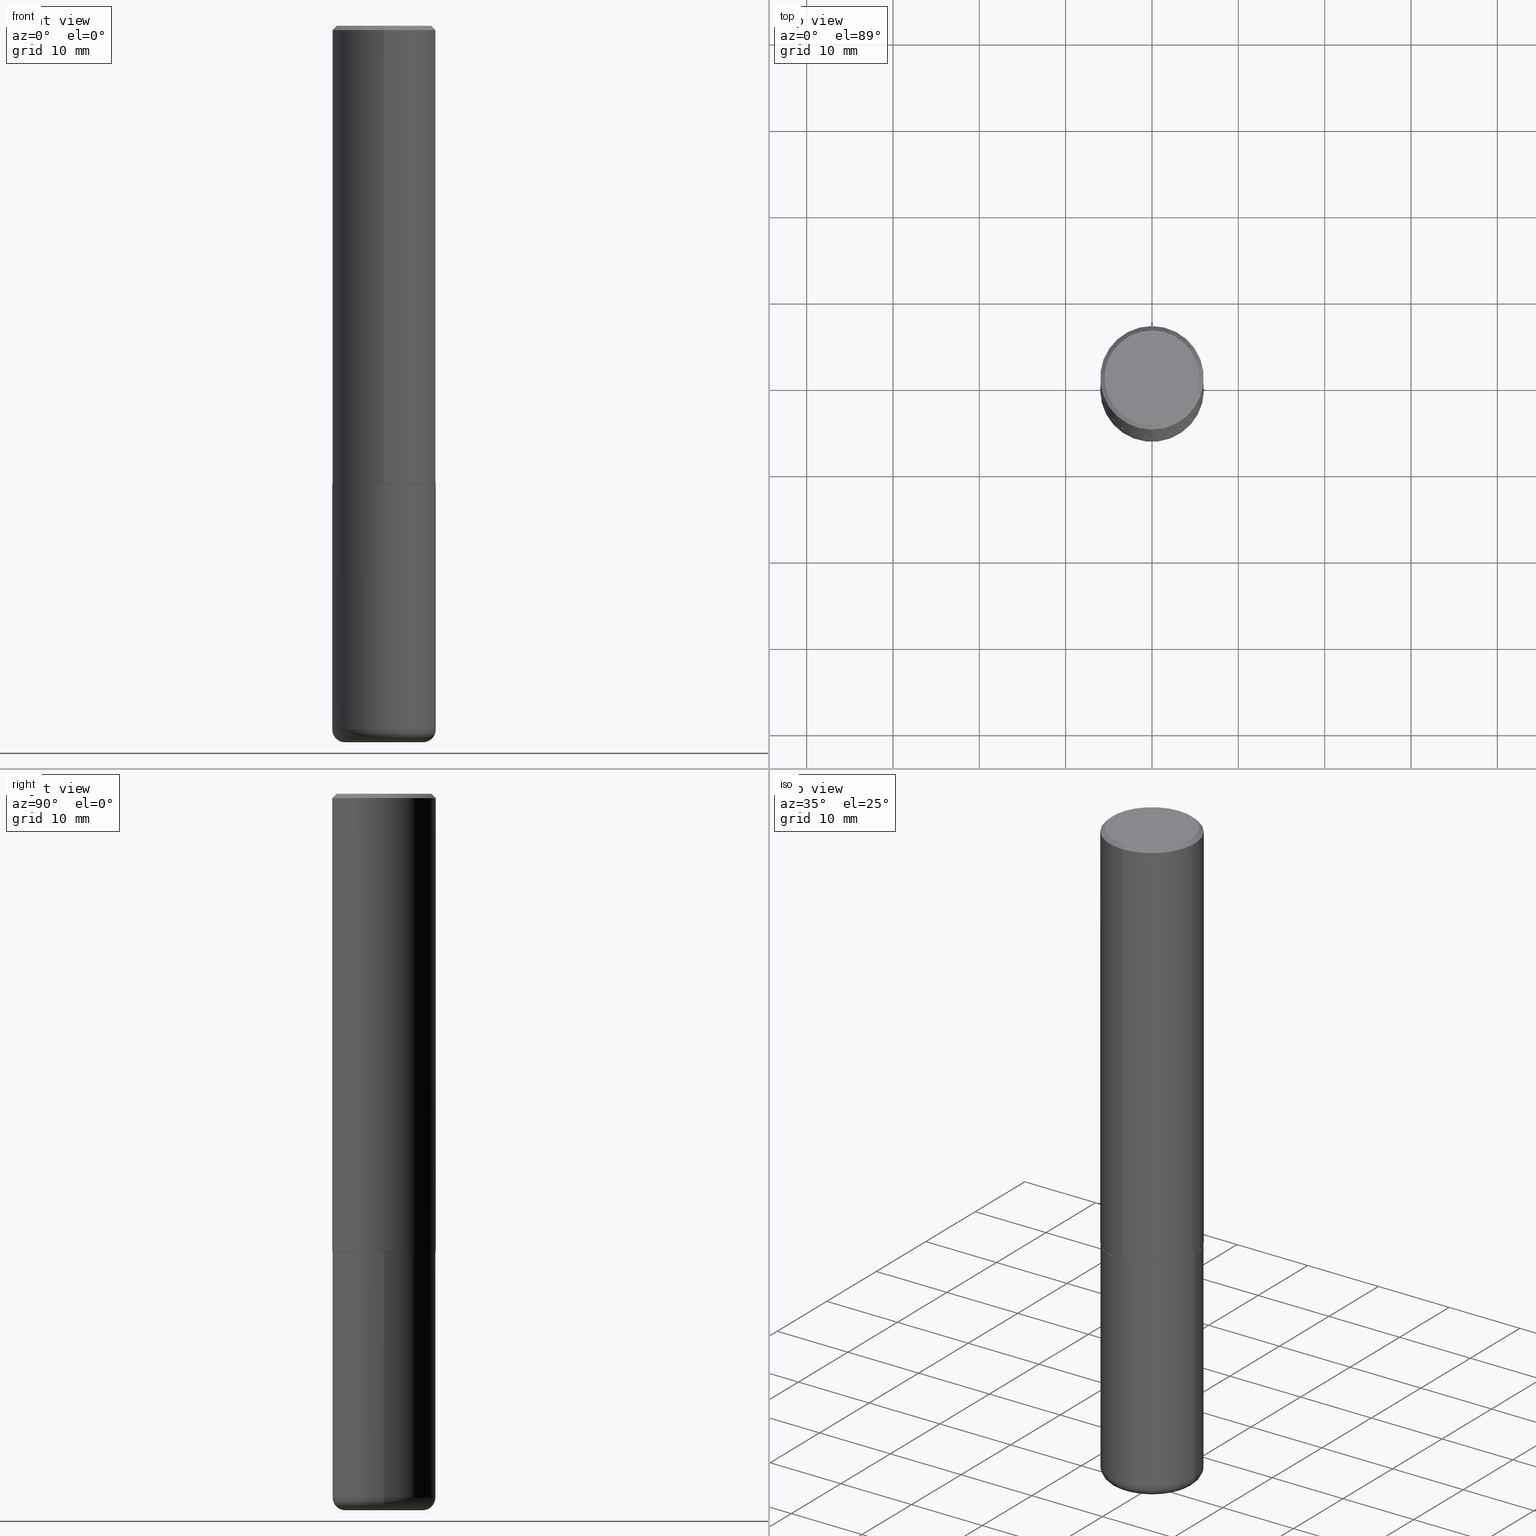
[diagram: canonical four-view strip — front | top / right | iso, engineering-drawing reading convention]
A machine part, canonical four-view strip (front | top / right | iso — engineering-drawing reading convention). The complete STEP part file that produces these views, byte-faithful:
ISO-10303-21;
HEADER;
FILE_DESCRIPTION (( 'STEP AP203' ),
    '1' );
FILE_NAME ('43484.STEP',
    '2024-03-04T05:36:12',
    ( '' ),
    ( '' ),
    'SwSTEP 2.0',
    'SolidWorks 2023',
    '' );
FILE_SCHEMA (( 'CONFIG_CONTROL_DESIGN' ));
ENDSEC;

DATA;
#1 = CARTESIAN_POINT ( 'NONE',  ( 0.000000000000000000, 0.000000000000000000, 0.000000000000000000 ) ) ;
#2 = FACE_OUTER_BOUND ( 'NONE', #232, .T. ) ;
#3 = DIRECTION ( 'NONE',  ( 2.445164865864999768E-29, -3.491916598680790247E-15, -1.000000000000000000 ) ) ;
#4 = DIRECTION ( 'NONE',  ( -2.445468806185136597E-29, 3.491481338843145583E-15, 1.000000000000000000 ) ) ;
#5 = EDGE_CURVE ( 'NONE', #24, #235, #342, .T. ) ;
#6 = DIRECTION ( 'NONE',  ( -6.982962677686265922E-15, -1.000000000000000000, 3.491916598680790247E-15 ) ) ;
#7 = TOROIDAL_SURFACE ( 'NONE', #220, 0.1771000000000000074, 0.05909999999999997200 ) ;
#8 = CARTESIAN_POINT ( 'NONE',  ( 7.991058417971171713E-29, -1.140911357093774644E-14, -3.267700000000000049 ) ) ;
#9 = LOCAL_TIME ( 0, 36, 12.00000000000000000, #96 ) ;
#10 = DATE_AND_TIME ( #408, #9 ) ;
#11 = ORIENTED_EDGE ( 'NONE', *, *, #269, .T. ) ;
#12 = CYLINDRICAL_SURFACE ( 'NONE', #228, 0.2361999999999999933 ) ;
#13 = EDGE_CURVE ( 'NONE', #330, #167, #407, .T. ) ;
#14 =( CONVERSION_BASED_UNIT ( 'INCH', #292 ) LENGTH_UNIT ( ) NAMED_UNIT ( #333 ) );
#15 = AXIS2_PLACEMENT_3D ( 'NONE', #223, #48, #217 ) ;
#16 = ORIENTED_EDGE ( 'NONE', *, *, #197, .F. ) ;
#17 = ADVANCED_FACE ( 'NONE', ( #350 ), #7, .T. ) ;
#18 = ORIENTED_EDGE ( 'NONE', *, *, #13, .F. ) ;
#19 = CIRCLE ( 'NONE', #142, 0.2362000000000002431 ) ;
#20 = AXIS2_PLACEMENT_3D ( 'NONE', #274, #311, #30 ) ;
#21 = EDGE_CURVE ( 'NONE', #330, #337, #127, .T. ) ;
#22 = EDGE_LOOP ( 'NONE', ( #268, #18, #413, #290 ) ) ;
#23 = EDGE_CURVE ( 'NONE', #235, #24, #98, .T. ) ;
#24 = VERTEX_POINT ( 'NONE', #151 ) ;
#25 = ORIENTED_EDGE ( 'NONE', *, *, #197, .T. ) ;
#26 = DIRECTION ( 'NONE',  ( -2.445468806185136597E-29, 3.491481338843145583E-15, 1.000000000000000000 ) ) ;
#27 = ORIENTED_EDGE ( 'NONE', *, *, #21, .F. ) ;
#28 = AXIS2_PLACEMENT_3D ( 'NONE', #392, #329, #283 ) ;
#29 = CYLINDRICAL_SURFACE ( 'NONE', #20, 0.2362000000000001321 ) ;
#30 = DIRECTION ( 'NONE',  ( -6.982962677686265922E-15, -1.000000000000000000, 3.491916598680790641E-15 ) ) ;
#31 = PERSON_AND_ORGANIZATION ( #91, #132 ) ;
#32 = CARTESIAN_POINT ( 'NONE',  ( -1.066731455221863583E-46, 1.523389006125936301E-32, 4.362615666999196179E-18 ) ) ;
#33 = PERSON_AND_ORGANIZATION_ROLE ( 'classification_officer' ) ;
#34 = APPROVAL_ROLE ( '' ) ;
#35 = DIRECTION ( 'NONE',  ( -2.445164865864999768E-29, 3.491916598680790247E-15, 1.000000000000000000 ) ) ;
#36 = DATE_AND_TIME ( #218, #364 ) ;
#37 = EDGE_CURVE ( 'NONE', #257, #170, #317, .T. ) ;
#38 = DIRECTION ( 'NONE',  ( 0.000000000000000000, 0.000000000000000000, 1.000000000000000000 ) ) ;
#39 = PERSON_AND_ORGANIZATION_ROLE ( 'design_supplier' ) ;
#40 = DIRECTION ( 'NONE',  ( 2.438088387897960049E-29, -3.491481338843145188E-15, -1.000000000000000000 ) ) ;
#41 = DIRECTION ( 'NONE',  ( -2.445468806185136597E-29, 3.491481338843145583E-15, 1.000000000000000000 ) ) ;
#42 = DIRECTION ( 'NONE',  ( 1.000000000000000000, -6.982962677686265133E-15, 0.000000000000000000 ) ) ;
#43 = EDGE_CURVE ( 'NONE', #235, #402, #248, .T. ) ;
#44 = PERSON_AND_ORGANIZATION ( #91, #132 ) ;
#45 = ORIENTED_EDGE ( 'NONE', *, *, #155, .T. ) ;
#46 = CARTESIAN_POINT ( 'NONE',  ( -1.551844647095919747E-15, -0.2161999999999999755, 7.593149843017860131E-16 ) ) ;
#47 = PRODUCT_DEFINITION ( 'UNKNOWN', '', #77, #349 ) ;
#48 = DIRECTION ( 'NONE',  ( -6.982962677686266711E-15, -1.000000000000000000, 3.491481338843145583E-15 ) ) ;
#49 =( NAMED_UNIT ( * ) SI_UNIT ( $, .STERADIAN. ) SOLID_ANGLE_UNIT ( ) );
#50 = VECTOR ( 'NONE', #320, 39.37007874015748854 ) ;
#51 = COORDINATED_UNIVERSAL_TIME_OFFSET ( 5, 0, .BEHIND. ) ;
#52 = ORIENTED_EDGE ( 'NONE', *, *, #5, .T. ) ;
#53 = EDGE_LOOP ( 'NONE', ( #59, #136, #138, #334 ) ) ;
#54 = APPROVAL ( #348, 'UNSPECIFIED' ) ;
#55 = AXIS2_PLACEMENT_3D ( 'NONE', #244, #35, #318 ) ;
#56 = ORIENTED_EDGE ( 'NONE', *, *, #370, .F. ) ;
#57 = ORIENTED_EDGE ( 'NONE', *, *, #37, .F. ) ;
#58 = DIRECTION ( 'NONE',  ( 2.438088387897960049E-29, -3.491481338843145188E-15, -1.000000000000000000 ) ) ;
#59 = ORIENTED_EDGE ( 'NONE', *, *, #43, .F. ) ;
#60 = DIRECTION ( 'NONE',  ( 1.000000000000000000, -6.982962677686265133E-15, 0.000000000000000000 ) ) ;
#61 = AXIS2_PLACEMENT_3D ( 'NONE', #396, #185, #289 ) ;
#62 = DIRECTION ( 'NONE',  ( 2.445164865864999768E-29, -3.491916598680790247E-15, -1.000000000000000000 ) ) ;
#63 = CC_DESIGN_SECURITY_CLASSIFICATION ( #265, ( #77 ) ) ;
#64 = CARTESIAN_POINT ( 'NONE',  ( 7.846531211525630380E-29, -1.120276702381211762E-14, -3.208600000000000119 ) ) ;
#65 = DIRECTION ( 'NONE',  ( -2.445164865864999768E-29, 3.491916598680790247E-15, 1.000000000000000000 ) ) ;
#66 = FACE_OUTER_BOUND ( 'NONE', #267, .T. ) ;
#67 = CARTESIAN_POINT ( 'NONE',  ( 0.1771000000000000074, -1.264579626115598374E-14, -3.267700000000000049 ) ) ;
#68 = DIRECTION ( 'NONE',  ( -2.445164865864999768E-29, 3.491916598680790247E-15, 1.000000000000000000 ) ) ;
#69 = AXIS2_PLACEMENT_3D ( 'NONE', #225, #40, #187 ) ;
#70 =( LENGTH_UNIT ( ) NAMED_UNIT ( * ) SI_UNIT ( $, .METRE. ) );
#71 = PERSON_AND_ORGANIZATION ( #91, #132 ) ;
#72 = CALENDAR_DATE ( 2024, 4, 3 ) ;
#73 = AXIS2_PLACEMENT_3D ( 'NONE', #1, #122, #95 ) ;
#74 = AXIS2_PLACEMENT_3D ( 'NONE', #90, #278, #60 ) ;
#75 = DIRECTION ( 'NONE',  ( -6.982962677686265922E-15, -1.000000000000000000, 3.491916598680790247E-15 ) ) ;
#76 = ADVANCED_FACE ( 'NONE', ( #391 ), #206, .T. ) ;
#77 = PRODUCT_DEFINITION_FORMATION_WITH_SPECIFIED_SOURCE ( 'ANY', '', #137, .NOT_KNOWN. ) ;
#78 = ORIENTED_EDGE ( 'NONE', *, *, #37, .T. ) ;
#79 = ORIENTED_EDGE ( 'NONE', *, *, #370, .T. ) ;
#80 = CONICAL_SURFACE ( 'NONE', #100, 0.2361999999999999933, 0.7853981633974476129 ) ;
#81 = ORIENTED_EDGE ( 'NONE', *, *, #155, .F. ) ;
#82 = DIRECTION ( 'NONE',  ( -2.445164865864999768E-29, 3.491916598680790247E-15, 1.000000000000000000 ) ) ;
#83 = ADVANCED_FACE ( 'NONE', ( #89 ), #134, .T. ) ;
#84 = ORIENTED_EDGE ( 'NONE', *, *, #371, .F. ) ;
#85 = DIRECTION ( 'NONE',  ( -6.982962677686265922E-15, -1.000000000000000000, 3.469747663417773452E-15 ) ) ;
#86 = APPROVAL ( #115, 'UNSPECIFIED' ) ;
#87 = EDGE_LOOP ( 'NONE', ( #45, #196, #198, #378 ) ) ;
#88 = LINE ( 'NONE', #351, #363 ) ;
#89 = FACE_OUTER_BOUND ( 'NONE', #241, .T. ) ;
#90 = CARTESIAN_POINT ( 'NONE',  ( 5.102715210985906276E-29, -7.285324961630107416E-15, -2.086600000000000232 ) ) ;
#91 = PERSON ( 'UNSPECIFIED', 'UNSPECIFIED', 'UNSPECIFIED', ('UNSPECIFIED'), ('UNSPECIFIED'), ('UNSPECIFIED') ) ;
#92 = DIRECTION ( 'NONE',  ( -2.445164865864999768E-29, 3.491916598680790247E-15, 1.000000000000000000 ) ) ;
#93 = CARTESIAN_POINT ( 'NONE',  ( 1.649375784469496525E-15, 0.2361999999999999378, -0.02000000000000087472 ) ) ;
#94 = EDGE_CURVE ( 'NONE', #167, #170, #148, .T. ) ;
#95 = DIRECTION ( 'NONE',  ( 1.000000000000000000, -6.982962677686266711E-15, 4.876176775795936353E-29 ) ) ;
#96 = COORDINATED_UNIVERSAL_TIME_OFFSET ( 5, 0, .BEHIND. ) ;
#97 = DIRECTION ( 'NONE',  ( 1.000000000000000000, -6.982962677686266711E-15, 4.876176775795936353E-29 ) ) ;
#98 = CIRCLE ( 'NONE', #175, 0.2362000000000000210 ) ;
#99 = CARTESIAN_POINT ( 'NONE',  ( 5.102081009113908658E-29, -7.286233174807336788E-15, -2.086600000000000232 ) ) ;
#100 = AXIS2_PLACEMENT_3D ( 'NONE', #152, #62, #144 ) ;
#101 = FACE_OUTER_BOUND ( 'NONE', #332, .T. ) ;
#102 = APPLICATION_CONTEXT ( 'configuration controlled 3d designs of mechanical parts and assemblies' ) ;
#103 = ADVANCED_FACE ( 'NONE', ( #66 ), #280, .T. ) ;
#104 = ORIENTED_EDGE ( 'NONE', *, *, #316, .F. ) ;
#105 = ORIENTED_EDGE ( 'NONE', *, *, #406, .T. ) ;
#106 = ADVANCED_FACE ( 'NONE', ( #353 ), #209, .T. ) ;
#107 = CLOSED_SHELL ( 'NONE', ( #344, #382, #315, #106, #76, #262, #405, #415 ) ) ;
#108 = VECTOR ( 'NONE', #341, 39.37007874015748143 ) ;
#109 = ORIENTED_EDGE ( 'NONE', *, *, #43, .T. ) ;
#110 = EDGE_LOOP ( 'NONE', ( #404, #173, #168, #199 ) ) ;
#111 = ORIENTED_EDGE ( 'NONE', *, *, #130, .F. ) ;
#112 = CC_DESIGN_APPROVAL ( #54, ( #265 ) ) ;
#113 = ORIENTED_EDGE ( 'NONE', *, *, #145, .F. ) ;
#114 = FACE_OUTER_BOUND ( 'NONE', #373, .T. ) ;
#115 = APPROVAL_STATUS ( 'not_yet_approved' ) ;
#116 = ORIENTED_EDGE ( 'NONE', *, *, #219, .F. ) ;
#117 = LINE ( 'NONE', #377, #166 ) ;
#118 = CARTESIAN_POINT ( 'NONE',  ( 4.890329731730012603E-31, -6.983833197361597897E-17, -0.02000000000000005246 ) ) ;
#119 = CARTESIAN_POINT ( 'NONE',  ( 0.2361999999999999933, -1.649375784469496131E-15, 1.151752954443000088E-29 ) ) ;
#120 = CIRCLE ( 'NONE', #28, 0.2361999999999999933 ) ;
#121 = LINE ( 'NONE', #119, #108 ) ;
#122 = DIRECTION ( 'NONE',  ( -2.445468806185136597E-29, 3.491481338843145583E-15, 1.000000000000000000 ) ) ;
#123 = SHAPE_DEFINITION_REPRESENTATION ( #237, #319 ) ;
#124 = PLANE ( 'NONE',  #69 ) ;
#125 = VERTEX_POINT ( 'NONE', #359 ) ;
#126 = PLANE ( 'NONE',  #61 ) ;
#127 = LINE ( 'NONE', #275, #50 ) ;
#128 = CIRCLE ( 'NONE', #15, 0.05909999999999999282 ) ;
#129 = DIRECTION ( 'NONE',  ( 6.982962677686265922E-15, 1.000000000000000000, -3.487819265831411744E-15 ) ) ;
#130 = EDGE_CURVE ( 'NONE', #339, #402, #169, .T. ) ;
#131 = PRODUCT_RELATED_PRODUCT_CATEGORY ( 'detail', '', ( #137 ) ) ;
#132 = ORGANIZATION ( 'UNSPECIFIED', 'UNSPECIFIED', '' ) ;
#133 = EDGE_LOOP ( 'NONE', ( #239, #11, #104, #116 ) ) ;
#134 = TOROIDAL_SURFACE ( 'NONE', #194, 0.1771000000000000074, 0.05909999999999997200 ) ;
#135 =( GEOMETRIC_REPRESENTATION_CONTEXT ( 3 ) GLOBAL_UNCERTAINTY_ASSIGNED_CONTEXT ( ( #403 ) ) GLOBAL_UNIT_ASSIGNED_CONTEXT ( ( #14, #252, #49 ) ) REPRESENTATION_CONTEXT ( 'NONE', 'WORKASPACE' ) );
#136 = ORIENTED_EDGE ( 'NONE', *, *, #23, .T. ) ;
#137 = PRODUCT ( '43484', '43484', '', ( #286 ) ) ;
#138 = ORIENTED_EDGE ( 'NONE', *, *, #307, .T. ) ;
#139 = ORIENTED_EDGE ( 'NONE', *, *, #94, .T. ) ;
#140 = CARTESIAN_POINT ( 'NONE',  ( 7.991058417971171713E-29, -1.140911357093774644E-14, -3.267700000000000049 ) ) ;
#141 = APPROVAL ( #360, 'UNSPECIFIED' ) ;
#142 = AXIS2_PLACEMENT_3D ( 'NONE', #281, #147, #205 ) ;
#143 = ORIENTED_EDGE ( 'NONE', *, *, #130, .T. ) ;
#144 = DIRECTION ( 'NONE',  ( 6.982962677686265922E-15, 1.000000000000000000, -3.487819265831411744E-15 ) ) ;
#145 = EDGE_CURVE ( 'NONE', #125, #235, #336, .T. ) ;
#146 = CARTESIAN_POINT ( 'NONE',  ( 0.000000000000000000, 0.000000000000000000, 0.000000000000000000 ) ) ;
#147 = DIRECTION ( 'NONE',  ( -2.445164865864999768E-29, 3.491916598680790247E-15, 1.000000000000000000 ) ) ;
#148 = LINE ( 'NONE', #345, #188 ) ;
#149 = DIRECTION ( 'NONE',  ( -2.445164865864999768E-29, 3.491916598680790247E-15, 1.000000000000000000 ) ) ;
#150 = CIRCLE ( 'NONE', #279, 0.1771000000000000074 ) ;
#151 = CARTESIAN_POINT ( 'NONE',  ( 0.2361999999999999933, -1.285214280828161414E-14, -3.208600000000000119 ) ) ;
#152 = CARTESIAN_POINT ( 'NONE',  ( 4.890329731730012603E-31, -6.983833197361597897E-17, -0.02000000000000005246 ) ) ;
#153 = CARTESIAN_POINT ( 'NONE',  ( 0.000000000000000000, 0.000000000000000000, 0.000000000000000000 ) ) ;
#154 = CARTESIAN_POINT ( 'NONE',  ( 7.846531211525630380E-29, -1.120276702381211762E-14, -3.208600000000000119 ) ) ;
#155 = EDGE_CURVE ( 'NONE', #369, #125, #356, .T. ) ;
#156 = MANIFOLD_SOLID_BREP ( 'Body-Move/Copy2[2]', #107 ) ;
#157 = CARTESIAN_POINT ( 'NONE',  ( 7.846531211525630380E-29, -1.120276702381211762E-14, -3.208600000000000119 ) ) ;
#158 = VECTOR ( 'NONE', #92, 39.37007874015748143 ) ;
#159 = FACE_OUTER_BOUND ( 'NONE', #397, .T. ) ;
#160 = AXIS2_PLACEMENT_3D ( 'NONE', #375, #82, #203 ) ;
#161 = CARTESIAN_POINT ( 'NONE',  ( -1.620449627073635079E-15, -0.2362000000000000766, -0.01999999999999922673 ) ) ;
#162 = ADVANCED_FACE ( 'NONE', ( #101 ), #124, .F. ) ;
#163 = DIRECTION ( 'NONE',  ( -2.445164865864999488E-29, 3.491916598680790247E-15, 1.000000000000000000 ) ) ;
#164 = EDGE_CURVE ( 'NONE', #170, #337, #302, .T. ) ;
#165 = APPROVAL_ROLE ( '' ) ;
#166 = VECTOR ( 'NONE', #182, 39.37007874015748143 ) ;
#167 = VERTEX_POINT ( 'NONE', #46 ) ;
#168 = ORIENTED_EDGE ( 'NONE', *, *, #219, .T. ) ;
#169 = CIRCLE ( 'NONE', #343, 0.2361999999999999933 ) ;
#170 = VERTEX_POINT ( 'NONE', #161 ) ;
#171 = ORIENTED_EDGE ( 'NONE', *, *, #13, .T. ) ;
#172 = FACE_OUTER_BOUND ( 'NONE', #297, .T. ) ;
#173 = ORIENTED_EDGE ( 'NONE', *, *, #230, .T. ) ;
#174 = FACE_OUTER_BOUND ( 'NONE', #133, .T. ) ;
#175 = AXIS2_PLACEMENT_3D ( 'NONE', #216, #41, #357 ) ;
#176 = AXIS2_PLACEMENT_3D ( 'NONE', #118, #3, #129 ) ;
#177 = PLANE ( 'NONE',  #288 ) ;
#178 = DIRECTION ( 'NONE',  ( -2.445468806185136597E-29, 3.491481338843145583E-15, 1.000000000000000000 ) ) ;
#179 = DIRECTION ( 'NONE',  ( -2.445164865864999768E-29, 3.491916598680790247E-15, 1.000000000000000000 ) ) ;
#180 = APPROVAL_DATE_TIME ( #321, #54 ) ;
#181 = DIRECTION ( 'NONE',  ( -2.445468806185136597E-29, 3.491481338843145583E-15, 1.000000000000000000 ) ) ;
#182 = DIRECTION ( 'NONE',  ( -4.937700262164969294E-15, -0.7071067811866054154, 0.7071067811864896191 ) ) ;
#183 = APPROVAL_DATE_TIME ( #314, #86 ) ;
#184 = LOCAL_TIME ( 0, 36, 12.00000000000000000, #326 ) ;
#185 = DIRECTION ( 'NONE',  ( 2.445164865864999488E-29, -3.491916598680790247E-15, -1.000000000000000000 ) ) ;
#186 = CARTESIAN_POINT ( 'NONE',  ( -1.649375784469496920E-15, -0.2362000000000001321, 8.247907006084031649E-16 ) ) ;
#187 = DIRECTION ( 'NONE',  ( -1.000000000000000000, 6.982962677686265922E-15, -4.876176775795935793E-29 ) ) ;
#188 = VECTOR ( 'NONE', #385, 39.37007874015748854 ) ;
#189 = AXIS2_PLACEMENT_3D ( 'NONE', #229, #38, #362 ) ;
#190 = AXIS2_PLACEMENT_3D ( 'NONE', #327, #68, #247 ) ;
#191 = APPROVAL_PERSON_ORGANIZATION ( #31, #54, #358 ) ;
#192 = ADVANCED_FACE ( 'NONE', ( #291 ), #12, .T. ) ;
#193 = FACE_OUTER_BOUND ( 'NONE', #305, .T. ) ;
#194 = AXIS2_PLACEMENT_3D ( 'NONE', #64, #178, #312 ) ;
#195 = AXIS2_PLACEMENT_3D ( 'NONE', #211, #65, #214 ) ;
#196 = ORIENTED_EDGE ( 'NONE', *, *, #145, .T. ) ;
#197 = EDGE_CURVE ( 'NONE', #167, #330, #328, .T. ) ;
#198 = ORIENTED_EDGE ( 'NONE', *, *, #5, .F. ) ;
#199 = ORIENTED_EDGE ( 'NONE', *, *, #233, .F. ) ;
#200 = CONICAL_SURFACE ( 'NONE', #55, 0.2351999999999999924, 0.7853981633975336552 ) ;
#201 = CC_DESIGN_PERSON_AND_ORGANIZATION_ASSIGNMENT ( #224, #258, ( #137 ) ) ;
#202 = EDGE_LOOP ( 'NONE', ( #376, #400, #78, #270 ) ) ;
#203 = DIRECTION ( 'NONE',  ( -6.982962677686265133E-15, -1.000000000000000000, 3.484499991918703113E-15 ) ) ;
#204 = ORIENTED_EDGE ( 'NONE', *, *, #230, .F. ) ;
#205 = DIRECTION ( 'NONE',  ( -6.982962677686265922E-15, -1.000000000000000000, 3.469747663417773452E-15 ) ) ;
#206 = CYLINDRICAL_SURFACE ( 'NONE', #208, 0.2362000000000001321 ) ;
#207 = CARTESIAN_POINT ( 'NONE',  ( 1.678301941865357380E-15, 0.2362000000000001321, -8.247907006084031649E-16 ) ) ;
#208 = AXIS2_PLACEMENT_3D ( 'NONE', #146, #243, #381 ) ;
#209 = CONICAL_SURFACE ( 'NONE', #176, 0.2361999999999999933, 0.7853981633974476129 ) ;
#210 = DIRECTION ( 'NONE',  ( -2.445468806185136877E-29, 3.491481338843145188E-15, 1.000000000000000000 ) ) ;
#211 = CARTESIAN_POINT ( 'NONE',  ( 5.102081009113908658E-29, -7.286233174807336788E-15, -2.086600000000000232 ) ) ;
#212 = PERSON_AND_ORGANIZATION ( #91, #132 ) ;
#213 = CARTESIAN_POINT ( 'NONE',  ( -1.066731455221863583E-46, 1.523389006125936301E-32, 4.362615666999196179E-18 ) ) ;
#214 = DIRECTION ( 'NONE',  ( -6.982962677686265133E-15, -1.000000000000000000, 3.484499991918703113E-15 ) ) ;
#215 = CARTESIAN_POINT ( 'NONE',  ( -0.1771000000000000074, -9.944395838780979940E-15, -3.208600000000000119 ) ) ;
#216 = CARTESIAN_POINT ( 'NONE',  ( 7.846531211525630380E-29, -1.120276702381211762E-14, -3.208600000000000119 ) ) ;
#217 = DIRECTION ( 'NONE',  ( 1.000000000000000000, -6.982962677686262766E-15, 0.000000000000000000 ) ) ;
#218 = CALENDAR_DATE ( 2024, 4, 3 ) ;
#219 = EDGE_CURVE ( 'NONE', #335, #257, #117, .T. ) ;
#220 = AXIS2_PLACEMENT_3D ( 'NONE', #157, #4, #251 ) ;
#221 = CIRCLE ( 'NONE', #74, 0.2361999999999999933 ) ;
#222 = DIRECTION ( 'NONE',  ( 1.000000000000000000, -6.982962677686264344E-15, 0.000000000000000000 ) ) ;
#223 = CARTESIAN_POINT ( 'NONE',  ( 0.1771000000000000074, -1.243944971403035492E-14, -3.208600000000000119 ) ) ;
#224 = PERSON_AND_ORGANIZATION ( #91, #132 ) ;
#225 = CARTESIAN_POINT ( 'NONE',  ( 5.102715210985906276E-29, -7.285324961630107416E-15, -2.086600000000000232 ) ) ;
#226 = PERSON_AND_ORGANIZATION ( #91, #132 ) ;
#227 = CC_DESIGN_PERSON_AND_ORGANIZATION_ASSIGNMENT ( #71, #253, ( #77 ) ) ;
#228 = AXIS2_PLACEMENT_3D ( 'NONE', #153, #250, #97 ) ;
#229 = CARTESIAN_POINT ( 'NONE',  ( 0.000000000000000000, 0.000000000000000000, 0.000000000000000000 ) ) ;
#230 = EDGE_CURVE ( 'NONE', #273, #335, #367, .T. ) ;
#231 = CC_DESIGN_DATE_AND_TIME_ASSIGNMENT ( #36, #361, ( #265 ) ) ;
#232 = EDGE_LOOP ( 'NONE', ( #16, #139, #304, #27 ) ) ;
#233 = EDGE_CURVE ( 'NONE', #372, #257, #384, .T. ) ;
#234 = ORIENTED_EDGE ( 'NONE', *, *, #164, .F. ) ;
#235 = VERTEX_POINT ( 'NONE', #417 ) ;
#236 = DIRECTION ( 'NONE',  ( 1.000000000000000000, -6.982962677686265922E-15, 0.000000000000000000 ) ) ;
#237 = PRODUCT_DEFINITION_SHAPE ( 'NONE', 'NONE',  #47 ) ;
#238 = AXIS2_PLACEMENT_3D ( 'NONE', #215, #322, #287 ) ;
#239 = ORIENTED_EDGE ( 'NONE', *, *, #371, .T. ) ;
#240 = FACE_OUTER_BOUND ( 'NONE', #110, .T. ) ;
#241 = EDGE_LOOP ( 'NONE', ( #113, #79, #105, #263 ) ) ;
#242 = LINE ( 'NONE', #207, #245 ) ;
#243 = DIRECTION ( 'NONE',  ( -2.445164865864999768E-29, 3.491916598680790247E-15, 1.000000000000000000 ) ) ;
#244 = CARTESIAN_POINT ( 'NONE',  ( 5.102081009113908658E-29, -7.286233174807336788E-15, -2.086600000000000232 ) ) ;
#245 = VECTOR ( 'NONE', #313, 39.37007874015748143 ) ;
#246 = DIRECTION ( 'NONE',  ( -6.982962677686265922E-15, -1.000000000000000000, 3.491916598680790247E-15 ) ) ;
#247 = DIRECTION ( 'NONE',  ( -6.982962677686265922E-15, -1.000000000000000000, 3.487819265831411744E-15 ) ) ;
#248 = LINE ( 'NONE', #254, #389 ) ;
#249 = APPROVAL_DATE_TIME ( #293, #141 ) ;
#250 = DIRECTION ( 'NONE',  ( -2.445468806185136597E-29, 3.491481338843145583E-15, 1.000000000000000000 ) ) ;
#251 = DIRECTION ( 'NONE',  ( 1.000000000000000000, -6.982962677686264344E-15, 4.883557194083111780E-29 ) ) ;
#252 =( NAMED_UNIT ( * ) PLANE_ANGLE_UNIT ( ) SI_UNIT ( $, .RADIAN. ) );
#253 = PERSON_AND_ORGANIZATION_ROLE ( 'creator' ) ;
#254 = CARTESIAN_POINT ( 'NONE',  ( -0.2361999999999999933, 1.678301941865356591E-15, -1.161852468318208757E-29 ) ) ;
#255 = DIRECTION ( 'NONE',  ( -2.445468806185136597E-29, 3.491481338843145583E-15, 1.000000000000000000 ) ) ;
#256 = PLANE ( 'NONE',  #418 ) ;
#257 = VERTEX_POINT ( 'NONE', #383 ) ;
#258 = PERSON_AND_ORGANIZATION_ROLE ( 'design_owner' ) ;
#259 = ORIENTED_EDGE ( 'NONE', *, *, #366, .T. ) ;
#260 = AXIS2_PLACEMENT_3D ( 'NONE', #8, #255, #393 ) ;
#261 = LOCAL_TIME ( 0, 36, 12.00000000000000000, #354 ) ;
#262 = ADVANCED_FACE ( 'NONE', ( #240 ), #200, .T. ) ;
#263 = ORIENTED_EDGE ( 'NONE', *, *, #23, .F. ) ;
#264 = AXIS2_PLACEMENT_3D ( 'NONE', #213, #285, #6 ) ;
#265 = SECURITY_CLASSIFICATION ( '', '', #324 ) ;
#266 = CC_DESIGN_PERSON_AND_ORGANIZATION_ASSIGNMENT ( #282, #33, ( #265 ) ) ;
#267 = EDGE_LOOP ( 'NONE', ( #52, #109, #111, #308 ) ) ;
#268 = ORIENTED_EDGE ( 'NONE', *, *, #94, .F. ) ;
#269 = EDGE_CURVE ( 'NONE', #273, #372, #88, .T. ) ;
#270 = ORIENTED_EDGE ( 'NONE', *, *, #398, .F. ) ;
#271 = CARTESIAN_POINT ( 'NONE',  ( 1.579546157692633424E-15, 0.2161999999999999755, -7.505897529677874959E-16 ) ) ;
#272 = AXIS2_PLACEMENT_3D ( 'NONE', #386, #380, #340 ) ;
#273 = VERTEX_POINT ( 'NONE', #276 ) ;
#274 = CARTESIAN_POINT ( 'NONE',  ( 0.000000000000000000, 0.000000000000000000, 0.000000000000000000 ) ) ;
#275 = CARTESIAN_POINT ( 'NONE',  ( 1.649375784469496525E-15, 0.2361999999999999378, -0.02000000000000087472 ) ) ;
#276 = CARTESIAN_POINT ( 'NONE',  ( 1.674749228186607758E-15, 0.2351999999999927204, -2.086600000000001121 ) ) ;
#277 = CALENDAR_DATE ( 2024, 4, 3 ) ;
#278 = DIRECTION ( 'NONE',  ( -2.445468806185136597E-29, 3.491481338843145583E-15, 1.000000000000000000 ) ) ;
#279 = AXIS2_PLACEMENT_3D ( 'NONE', #411, #26, #236 ) ;
#280 = CYLINDRICAL_SURFACE ( 'NONE', #73, 0.2361999999999999933 ) ;
#281 = CARTESIAN_POINT ( 'NONE',  ( 5.099635844248043868E-29, -7.282741258208656487E-15, -2.085599999999999898 ) ) ;
#282 = PERSON_AND_ORGANIZATION ( #91, #132 ) ;
#283 = DIRECTION ( 'NONE',  ( -6.982962677686265922E-15, -1.000000000000000000, 3.487819265831411744E-15 ) ) ;
#284 = MANIFOLD_SOLID_BREP ( 'Body-Move/Copy2[1]', #300 ) ;
#285 = DIRECTION ( 'NONE',  ( -2.445164865864999768E-29, 3.491916598680790247E-15, 1.000000000000000000 ) ) ;
#286 = MECHANICAL_CONTEXT ( 'NONE', #325, 'mechanical' ) ;
#287 = DIRECTION ( 'NONE',  ( -1.000000000000000000, 7.105427357600993181E-15, 0.000000000000000000 ) ) ;
#288 = AXIS2_PLACEMENT_3D ( 'NONE', #140, #58, #309 ) ;
#289 = DIRECTION ( 'NONE',  ( 6.982962677686265922E-15, 1.000000000000000000, -3.491916598680790247E-15 ) ) ;
#290 = ORIENTED_EDGE ( 'NONE', *, *, #398, .T. ) ;
#291 = FACE_OUTER_BOUND ( 'NONE', #53, .T. ) ;
#292 = LENGTH_MEASURE_WITH_UNIT ( LENGTH_MEASURE( 0.02539999999999999897 ), #70 );
#293 = DATE_AND_TIME ( #72, #184 ) ;
#294 = AXIS2_PLACEMENT_3D ( 'NONE', #154, #181, #222 ) ;
#295 = AXIS2_PLACEMENT_3D ( 'NONE', #32, #179, #246 ) ;
#296 = EDGE_CURVE ( 'NONE', #402, #339, #221, .T. ) ;
#297 = EDGE_LOOP ( 'NONE', ( #409, #259, #234, #57 ) ) ;
#298 = CC_DESIGN_DATE_AND_TIME_ASSIGNMENT ( #10, #394, ( #47 ) ) ;
#299 = PERSON_AND_ORGANIZATION ( #91, #132 ) ;
#300 = CLOSED_SHELL ( 'NONE', ( #103, #17, #162, #192, #83, #379 ) ) ;
#301 = ORIENTED_EDGE ( 'NONE', *, *, #296, .T. ) ;
#302 = CIRCLE ( 'NONE', #190, 0.2361999999999999933 ) ;
#303 = CC_DESIGN_APPROVAL ( #86, ( #77 ) ) ;
#304 = ORIENTED_EDGE ( 'NONE', *, *, #164, .T. ) ;
#305 = EDGE_LOOP ( 'NONE', ( #84, #204 ) ) ;
#306 = CARTESIAN_POINT ( 'NONE',  ( 0.2361999999999999933, -8.934700746099602364E-15, -2.086600000000000232 ) ) ;
#307 = EDGE_CURVE ( 'NONE', #24, #339, #121, .T. ) ;
#308 = ORIENTED_EDGE ( 'NONE', *, *, #307, .F. ) ;
#309 = DIRECTION ( 'NONE',  ( -1.000000000000000000, 6.982962677686265922E-15, -4.876176775795935793E-29 ) ) ;
#310 = CIRCLE ( 'NONE', #160, 0.2351999999999999924 ) ;
#311 = DIRECTION ( 'NONE',  ( -2.445164865864999768E-29, 3.491916598680790247E-15, 1.000000000000000000 ) ) ;
#312 = DIRECTION ( 'NONE',  ( 1.000000000000000000, -6.982962677686264344E-15, 4.883557194083111780E-29 ) ) ;
#313 = DIRECTION ( 'NONE',  ( -2.445164865864999768E-29, 3.491916598680790247E-15, 1.000000000000000000 ) ) ;
#314 = DATE_AND_TIME ( #401, #412 ) ;
#315 = ADVANCED_FACE ( 'NONE', ( #2 ), #80, .T. ) ;
#316 = EDGE_CURVE ( 'NONE', #257, #372, #19, .T. ) ;
#317 = LINE ( 'NONE', #186, #158 ) ;
#318 = DIRECTION ( 'NONE',  ( -6.982962677686265133E-15, -1.000000000000000000, 3.484499991918703113E-15 ) ) ;
#319 = ADVANCED_BREP_SHAPE_REPRESENTATION ( '43484', ( #284, #156, #189 ), #135 ) ;
#320 = DIRECTION ( 'NONE',  ( 4.937700262164543309E-15, 0.7071067811865444641, -0.7071067811865503483 ) ) ;
#321 = DATE_AND_TIME ( #277, #261 ) ;
#322 = DIRECTION ( 'NONE',  ( 7.105427357601001859E-15, 1.000000000000000000, -3.491481338843145583E-15 ) ) ;
#323 = APPLICATION_PROTOCOL_DEFINITION ( 'international standard', 'config_control_design', 1994, #325 ) ;
#324 = SECURITY_CLASSIFICATION_LEVEL ( 'unclassified' ) ;
#325 = APPLICATION_CONTEXT ( 'configuration controlled 3d designs of mechanical parts and assemblies' ) ;
#326 = COORDINATED_UNIVERSAL_TIME_OFFSET ( 5, 0, .BEHIND. ) ;
#327 = CARTESIAN_POINT ( 'NONE',  ( 4.890329731730012603E-31, -6.983833197361597897E-17, -0.02000000000000005246 ) ) ;
#328 = CIRCLE ( 'NONE', #295, 0.2161999999999999755 ) ;
#329 = DIRECTION ( 'NONE',  ( -2.445164865864999768E-29, 3.491916598680790247E-15, 1.000000000000000000 ) ) ;
#330 = VERTEX_POINT ( 'NONE', #271 ) ;
#331 = CC_DESIGN_PERSON_AND_ORGANIZATION_ASSIGNMENT ( #44, #387, ( #47 ) ) ;
#332 = EDGE_LOOP ( 'NONE', ( #143, #301 ) ) ;
#333 = DIMENSIONAL_EXPONENTS ( 1.000000000000000000, 0.000000000000000000, 0.000000000000000000, 0.000000000000000000, 0.000000000000000000, 0.000000000000000000, 0.000000000000000000 ) ;
#334 = ORIENTED_EDGE ( 'NONE', *, *, #296, .F. ) ;
#335 = VERTEX_POINT ( 'NONE', #416 ) ;
#336 = CIRCLE ( 'NONE', #238, 0.05909999999999999282 ) ;
#337 = VERTEX_POINT ( 'NONE', #93 ) ;
#338 = CARTESIAN_POINT ( 'NONE',  ( 1.678301941865383610E-15, 0.2361999999999929711, -2.085600000000000787 ) ) ;
#339 = VERTEX_POINT ( 'NONE', #306 ) ;
#340 = DIRECTION ( 'NONE',  ( -6.982962677686265133E-15, -1.000000000000000000, 3.484499991918703113E-15 ) ) ;
#341 = DIRECTION ( 'NONE',  ( -2.445468806185136877E-29, 3.491481338843145188E-15, 1.000000000000000000 ) ) ;
#342 = CIRCLE ( 'NONE', #294, 0.2362000000000000210 ) ;
#343 = AXIS2_PLACEMENT_3D ( 'NONE', #388, #355, #42 ) ;
#344 = ADVANCED_FACE ( 'NONE', ( #174 ), #390, .T. ) ;
#345 = CARTESIAN_POINT ( 'NONE',  ( -1.620449627073635079E-15, -0.2362000000000000766, -0.01999999999999922673 ) ) ;
#346 = CARTESIAN_POINT ( 'NONE',  ( 5.099635844248043868E-29, -7.282741258208656487E-15, -2.085599999999999898 ) ) ;
#347 = CC_DESIGN_PERSON_AND_ORGANIZATION_ASSIGNMENT ( #212, #39, ( #77 ) ) ;
#348 = APPROVAL_STATUS ( 'not_yet_approved' ) ;
#349 = DESIGN_CONTEXT ( 'detailed design', #102, 'design' ) ;
#350 = FACE_OUTER_BOUND ( 'NONE', #87, .T. ) ;
#351 = CARTESIAN_POINT ( 'NONE',  ( 1.671196514507806268E-15, 0.2351999999999927204, -2.086600000000001121 ) ) ;
#352 = COORDINATED_UNIVERSAL_TIME_OFFSET ( 5, 0, .BEHIND. ) ;
#353 = FACE_OUTER_BOUND ( 'NONE', #22, .T. ) ;
#354 = COORDINATED_UNIVERSAL_TIME_OFFSET ( 5, 0, .BEHIND. ) ;
#355 = DIRECTION ( 'NONE',  ( -2.445468806185136597E-29, 3.491481338843145583E-15, 1.000000000000000000 ) ) ;
#356 = CIRCLE ( 'NONE', #260, 0.1771000000000000074 ) ;
#357 = DIRECTION ( 'NONE',  ( 1.000000000000000000, -6.982962677686264344E-15, 0.000000000000000000 ) ) ;
#358 = APPROVAL_ROLE ( '' ) ;
#359 = CARTESIAN_POINT ( 'NONE',  ( -0.1771000000000000074, -9.837603733926685782E-15, -3.267700000000000049 ) ) ;
#360 = APPROVAL_STATUS ( 'not_yet_approved' ) ;
#361 = DATE_TIME_ROLE ( 'classification_date' ) ;
#362 = DIRECTION ( 'NONE',  ( 1.000000000000000000, 0.000000000000000000, 0.000000000000000000 ) ) ;
#363 = VECTOR ( 'NONE', #414, 39.37007874015748143 ) ;
#364 = LOCAL_TIME ( 0, 36, 12.00000000000000000, #352 ) ;
#365 = APPLICATION_PROTOCOL_DEFINITION ( 'international standard', 'config_control_design', 1994, #102 ) ;
#366 = EDGE_CURVE ( 'NONE', #372, #337, #242, .T. ) ;
#367 = CIRCLE ( 'NONE', #272, 0.2351999999999999924 ) ;
#368 = CC_DESIGN_APPROVAL ( #141, ( #47 ) ) ;
#369 = VERTEX_POINT ( 'NONE', #67 ) ;
#370 = EDGE_CURVE ( 'NONE', #125, #369, #150, .T. ) ;
#371 = EDGE_CURVE ( 'NONE', #335, #273, #310, .T. ) ;
#372 = VERTEX_POINT ( 'NONE', #338 ) ;
#373 = EDGE_LOOP ( 'NONE', ( #81, #56 ) ) ;
#374 = APPROVAL_PERSON_ORGANIZATION ( #226, #141, #165 ) ;
#375 = CARTESIAN_POINT ( 'NONE',  ( 5.102081009113908658E-29, -7.286233174807336788E-15, -2.086600000000000232 ) ) ;
#376 = ORIENTED_EDGE ( 'NONE', *, *, #366, .F. ) ;
#377 = CARTESIAN_POINT ( 'NONE',  ( -1.642392821791758643E-15, -0.2352000000000072644, -2.086599999999999344 ) ) ;
#378 = ORIENTED_EDGE ( 'NONE', *, *, #406, .F. ) ;
#379 = ADVANCED_FACE ( 'NONE', ( #114 ), #177, .T. ) ;
#380 = DIRECTION ( 'NONE',  ( -2.445164865864999768E-29, 3.491916598680790247E-15, 1.000000000000000000 ) ) ;
#381 = DIRECTION ( 'NONE',  ( -6.982962677686265922E-15, -1.000000000000000000, 3.491916598680790641E-15 ) ) ;
#382 = ADVANCED_FACE ( 'NONE', ( #172 ), #29, .T. ) ;
#383 = CARTESIAN_POINT ( 'NONE',  ( -1.649375784469446630E-15, -0.2362000000000075151, -2.085599999999999010 ) ) ;
#384 = CIRCLE ( 'NONE', #410, 0.2362000000000002431 ) ;
#385 = DIRECTION ( 'NONE',  ( -4.851104656540959542E-15, -0.7071067811865493491, -0.7071067811865454633 ) ) ;
#386 = CARTESIAN_POINT ( 'NONE',  ( 5.102081009113908658E-29, -7.286233174807336788E-15, -2.086600000000000232 ) ) ;
#387 = PERSON_AND_ORGANIZATION_ROLE ( 'creator' ) ;
#388 = CARTESIAN_POINT ( 'NONE',  ( 5.102715210985906276E-29, -7.285324961630107416E-15, -2.086600000000000232 ) ) ;
#389 = VECTOR ( 'NONE', #210, 39.37007874015748143 ) ;
#390 = CONICAL_SURFACE ( 'NONE', #195, 0.2351999999999999924, 0.7853981633975336552 ) ;
#391 = FACE_OUTER_BOUND ( 'NONE', #202, .T. ) ;
#392 = CARTESIAN_POINT ( 'NONE',  ( 4.890329731730012603E-31, -6.983833197361597897E-17, -0.02000000000000005246 ) ) ;
#393 = DIRECTION ( 'NONE',  ( 1.000000000000000000, -6.982962677686265922E-15, 0.000000000000000000 ) ) ;
#394 = DATE_TIME_ROLE ( 'creation_date' ) ;
#395 = CARTESIAN_POINT ( 'NONE',  ( -0.2361999999999999933, -7.565744050855755335E-15, -2.086600000000000232 ) ) ;
#396 = CARTESIAN_POINT ( 'NONE',  ( 1.509716530915770520E-15, 0.2161999999999999755, -7.527710608012871499E-16 ) ) ;
#397 = EDGE_LOOP ( 'NONE', ( #171, #25 ) ) ;
#398 = EDGE_CURVE ( 'NONE', #337, #170, #120, .T. ) ;
#399 = APPROVAL_PERSON_ORGANIZATION ( #299, #86, #34 ) ;
#400 = ORIENTED_EDGE ( 'NONE', *, *, #233, .T. ) ;
#401 = CALENDAR_DATE ( 2024, 4, 3 ) ;
#402 = VERTEX_POINT ( 'NONE', #395 ) ;
#403 = UNCERTAINTY_MEASURE_WITH_UNIT (LENGTH_MEASURE( 1.000000000000000082E-05 ), #14, 'distance_accuracy_value', 'NONE');
#404 = ORIENTED_EDGE ( 'NONE', *, *, #269, .F. ) ;
#405 = ADVANCED_FACE ( 'NONE', ( #193 ), #256, .F. ) ;
#406 = EDGE_CURVE ( 'NONE', #369, #24, #128, .T. ) ;
#407 = CIRCLE ( 'NONE', #264, 0.2161999999999999755 ) ;
#408 = CALENDAR_DATE ( 2024, 4, 3 ) ;
#409 = ORIENTED_EDGE ( 'NONE', *, *, #316, .T. ) ;
#410 = AXIS2_PLACEMENT_3D ( 'NONE', #346, #149, #85 ) ;
#411 = CARTESIAN_POINT ( 'NONE',  ( 7.991058417971171713E-29, -1.140911357093774644E-14, -3.267700000000000049 ) ) ;
#412 = LOCAL_TIME ( 0, 36, 12.00000000000000000, #51 ) ;
#413 = ORIENTED_EDGE ( 'NONE', *, *, #21, .T. ) ;
#414 = DIRECTION ( 'NONE',  ( 5.024295867788490741E-15, 0.7071067811866103003, 0.7071067811864847341 ) ) ;
#415 = ADVANCED_FACE ( 'NONE', ( #159 ), #126, .F. ) ;
#416 = CARTESIAN_POINT ( 'NONE',  ( -1.642392821791758643E-15, -0.2352000000000072644, -2.086599999999999344 ) ) ;
#417 = CARTESIAN_POINT ( 'NONE',  ( -0.2361999999999999933, -9.524465081946761225E-15, -3.208600000000000119 ) ) ;
#418 = AXIS2_PLACEMENT_3D ( 'NONE', #99, #163, #75 ) ;
ENDSEC;
END-ISO-10303-21;
